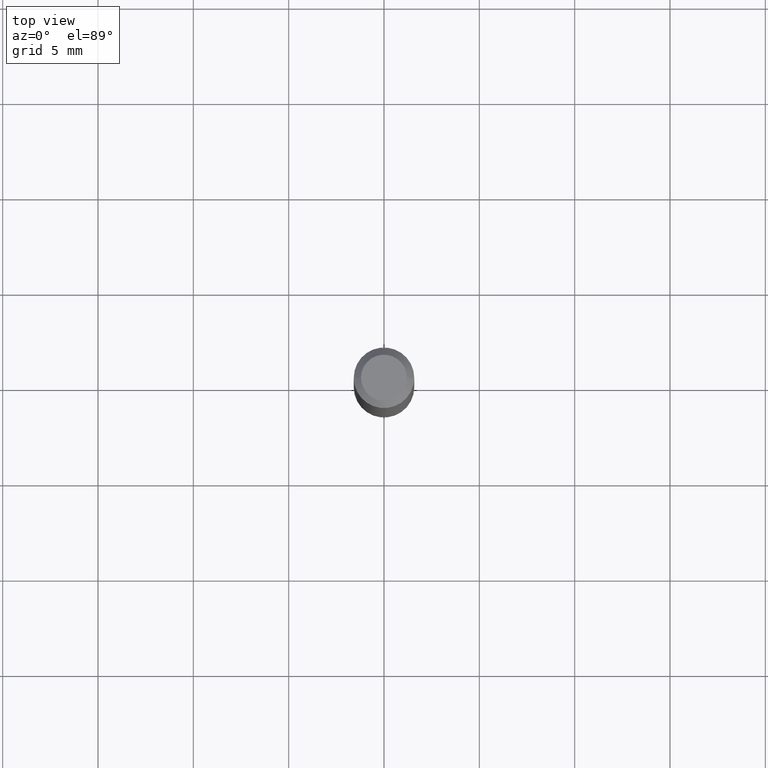
[diagram: clean part render]
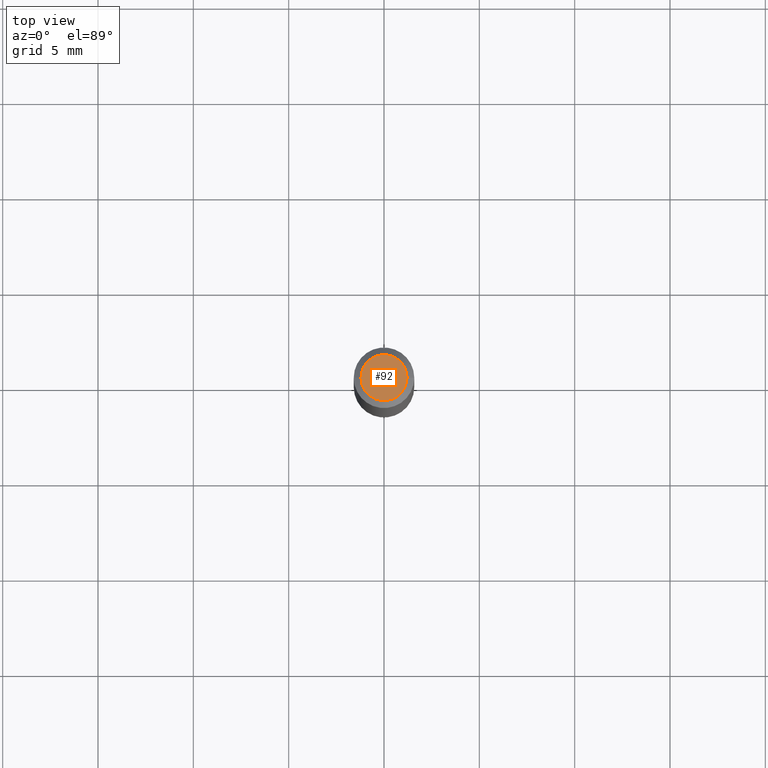
[diagram: same view with one face highlighted and labeled with its STEP entity id]
A machine part, top view. The second image highlights one B-rep face of the part: STEP entity #92.
In plain terms, the highlighted planar face has unit normal (0, -0, -1).
Its self-contained STEP definition (entity closure, byte-faithful):
#63 = DIRECTION ( 'NONE',  ( -1.000000000000000000, 6.982962677686265922E-15, -4.876176775795935793E-29 ) ) ;
#83 = FACE_OUTER_BOUND ( 'NONE', #484, .T. ) ;
#92 = ADVANCED_FACE ( 'NONE', ( #83 ), #429, .F. ) ;
#145 = VERTEX_POINT ( 'NONE', #223 ) ;
#209 = DIRECTION ( 'NONE',  ( -2.445468806185136597E-29, 3.491481338843145583E-15, 1.000000000000000000 ) ) ;
#223 = CARTESIAN_POINT ( 'NONE',  ( -0.04750000000000000749, 3.578768372314221353E-16, 2.731847993664239060E-16 ) ) ;
#233 = AXIS2_PLACEMENT_3D ( 'NONE', #421, #437, #471 ) ;
#249 = CIRCLE ( 'NONE', #233, 0.04750000000000000749 ) ;
#261 = ORIENTED_EDGE ( 'NONE', *, *, #316, .T. ) ;
#316 = EDGE_CURVE ( 'NONE', #145, #475, #331, .T. ) ;
#321 = CARTESIAN_POINT ( 'NONE',  ( -6.680649051745406845E-45, 9.538196290434862081E-31, 2.731847993664263218E-16 ) ) ;
#331 = CIRCLE ( 'NONE', #412, 0.04750000000000000749 ) ;
#412 = AXIS2_PLACEMENT_3D ( 'NONE', #321, #209, #443 ) ;
#421 = CARTESIAN_POINT ( 'NONE',  ( -6.680649051745406845E-45, 9.538196290434862081E-31, 2.731847993664263218E-16 ) ) ;
#424 = DIRECTION ( 'NONE',  ( 2.438088387897960049E-29, -3.491481338843145188E-15, -1.000000000000000000 ) ) ;
#429 = PLANE ( 'NONE',  #495 ) ;
#436 = EDGE_CURVE ( 'NONE', #475, #145, #249, .T. ) ;
#437 = DIRECTION ( 'NONE',  ( -2.445468806185136597E-29, 3.491481338843145583E-15, 1.000000000000000000 ) ) ;
#443 = DIRECTION ( 'NONE',  ( 1.000000000000000000, -6.982962677686266711E-15, 4.852736867747365086E-29 ) ) ;
#471 = DIRECTION ( 'NONE',  ( 1.000000000000000000, -6.982962677686266711E-15, 4.852736867747365086E-29 ) ) ;
#474 = CARTESIAN_POINT ( 'NONE',  ( 0.04750000000000000749, -4.035134999187568762E-16, 2.731847993664288856E-16 ) ) ;
#475 = VERTEX_POINT ( 'NONE', #474 ) ;
#484 = EDGE_LOOP ( 'NONE', ( #261, #505 ) ) ;
#494 = CARTESIAN_POINT ( 'NONE',  ( 3.316907271900976589E-16, 0.04750000000000000749, -2.925296391183627249E-17 ) ) ;
#495 = AXIS2_PLACEMENT_3D ( 'NONE', #494, #424, #63 ) ;
#505 = ORIENTED_EDGE ( 'NONE', *, *, #436, .T. ) ;